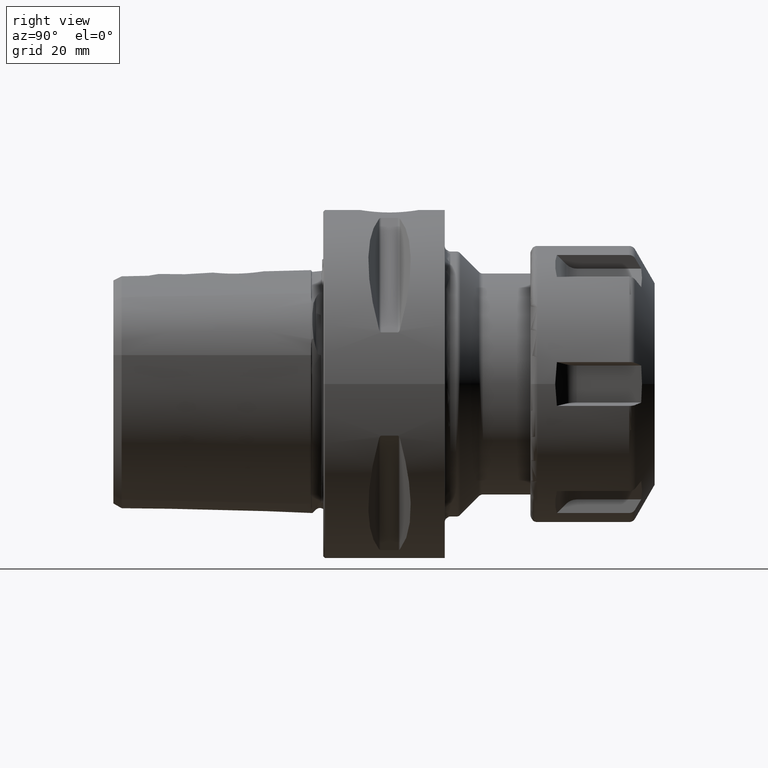
[diagram: clean part render]
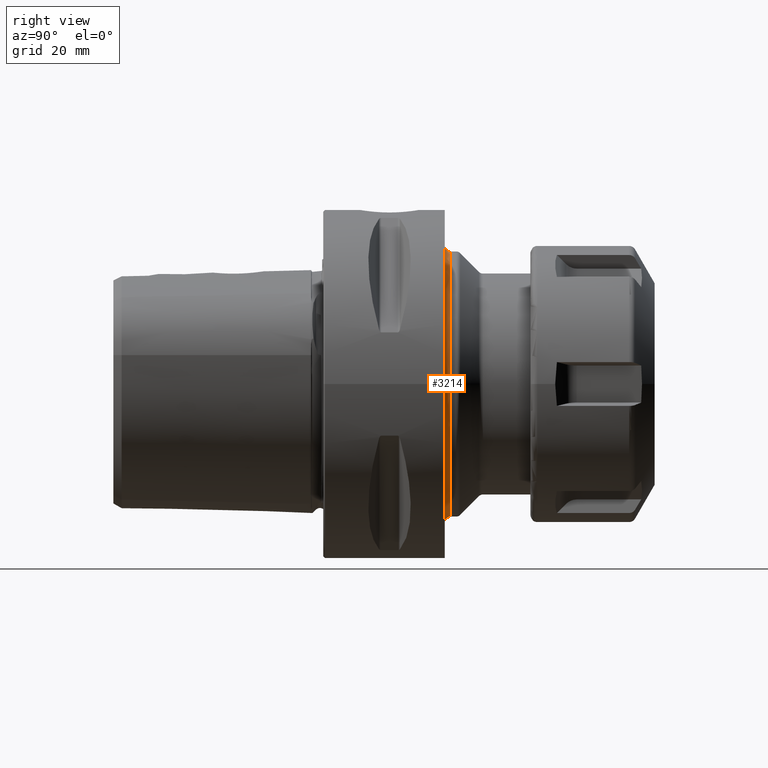
[diagram: same view with one face highlighted and labeled with its STEP entity id]
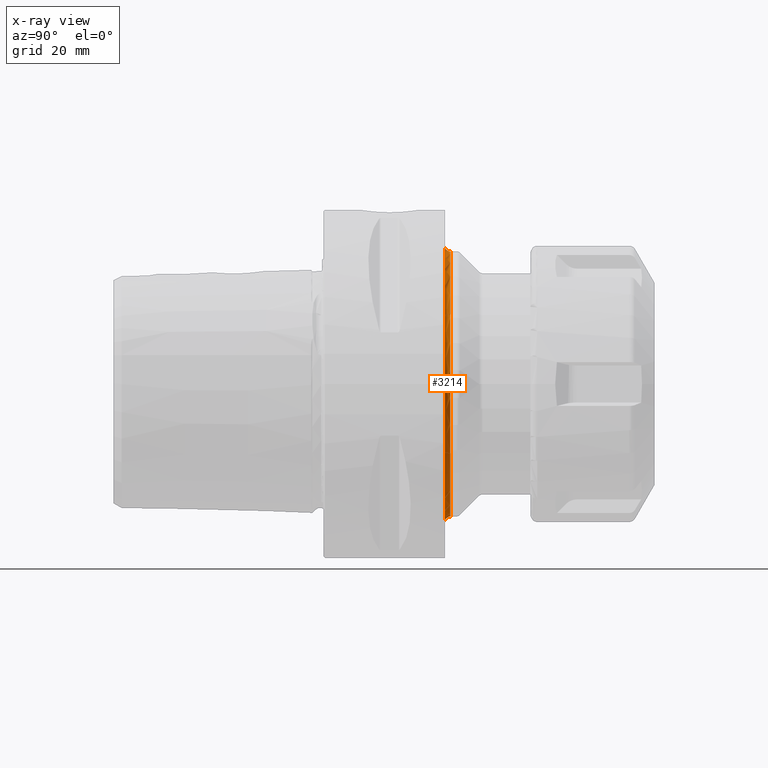
[diagram: x-ray of the same camera — body ghosted, the highlighted face saturated]
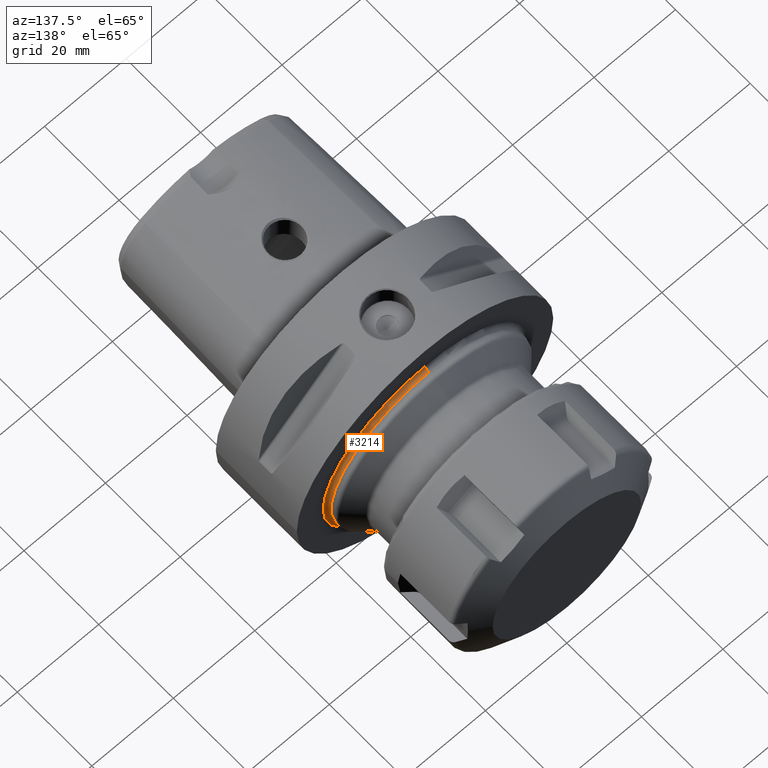
[diagram: same view with one face highlighted and labeled with its STEP entity id]
A machine part, right view. The second image highlights one B-rep face of the part: STEP entity #3214.
The next image is the same camera in x-ray: the body ghosted, the highlighted face saturated — about 0% of this face is hidden behind the body in this view.
A second angle (auxiliary view) of the same face is appended — the face is thin or edge-on in the first view.
In plain terms, the highlighted toroidal blend (fillet) surface has major radius 25 mm and minor (blend) radius 1 mm.
Its self-contained STEP definition (entity closure, byte-faithful):
#1154=CARTESIAN_POINT('',(0.E0,2.3E1,0.E0));
#1155=DIRECTION('',(0.E0,1.E0,0.E0));
#1156=DIRECTION('',(0.E0,0.E0,1.E0));
#1157=AXIS2_PLACEMENT_3D('',#1154,#1155,#1156);
#1189=CARTESIAN_POINT('',(-4.524158825348E-13,2.3E1,2.5E1));
#1190=DIRECTION('',(1.E0,0.E0,1.809837002487E-14));
#1191=DIRECTION('',(0.E0,-1.E0,-1.321609488514E-12));
#1192=AXIS2_PLACEMENT_3D('',#1189,#1190,#1191);
#1199=CARTESIAN_POINT('',(0.E0,2.2E1,0.E0));
#1200=DIRECTION('',(0.E0,1.E0,0.E0));
#1201=DIRECTION('',(0.E0,0.E0,1.E0));
#1202=AXIS2_PLACEMENT_3D('',#1199,#1200,#1201);
#1734=CARTESIAN_POINT('',(4.601874437071E-13,2.3E1,-2.5E1));
#1735=DIRECTION('',(-1.E0,0.E0,-1.840888552707E-14));
#1736=DIRECTION('',(0.E0,-1.E0,1.321609488514E-12));
#1737=AXIS2_PLACEMENT_3D('',#1734,#1735,#1736);
#2128=CARTESIAN_POINT('',(1.608122649677E-14,2.2E1,-2.5E1));
#2129=CARTESIAN_POINT('',(-1.914284349464E-14,2.2E1,2.5E1));
#2130=VERTEX_POINT('',#2128);
#2131=VERTEX_POINT('',#2129);
#2132=CARTESIAN_POINT('',(0.E0,2.3E1,-2.4E1));
#2133=CARTESIAN_POINT('',(0.E0,2.3E1,2.4E1));
#2134=VERTEX_POINT('',#2132);
#2135=VERTEX_POINT('',#2133);
#3200=CARTESIAN_POINT('',(0.E0,2.3E1,0.E0));
#3201=DIRECTION('',(0.E0,1.E0,0.E0));
#3202=DIRECTION('',(-1.067356974111E-2,0.E0,9.999430358320E-1));
#3203=AXIS2_PLACEMENT_3D('',#3200,#3201,#3202);
#3204=TOROIDAL_SURFACE('',#3203,2.5E1,1.E0);
#3206=ORIENTED_EDGE('',*,*,#3205,.F.);
#3208=ORIENTED_EDGE('',*,*,#3207,.T.);
#3209=ORIENTED_EDGE('',*,*,#3143,.T.);
#3211=ORIENTED_EDGE('',*,*,#3210,.F.);
#3212=EDGE_LOOP('',(#3206,#3208,#3209,#3211));
#3213=FACE_OUTER_BOUND('',#3212,.F.);
#3214=ADVANCED_FACE('',(#3213),#3204,.F.);
#1158=CIRCLE('',#1157,2.4E1);
#1193=CIRCLE('',#1192,1.E0);
#1203=CIRCLE('',#1202,2.5E1);
#1738=CIRCLE('',#1737,1.E0);
#3143=EDGE_CURVE('',#2135,#2134,#1158,.T.);
#3205=EDGE_CURVE('',#2131,#2130,#1203,.T.);
#3207=EDGE_CURVE('',#2131,#2135,#1193,.T.);
#3210=EDGE_CURVE('',#2130,#2134,#1738,.T.);